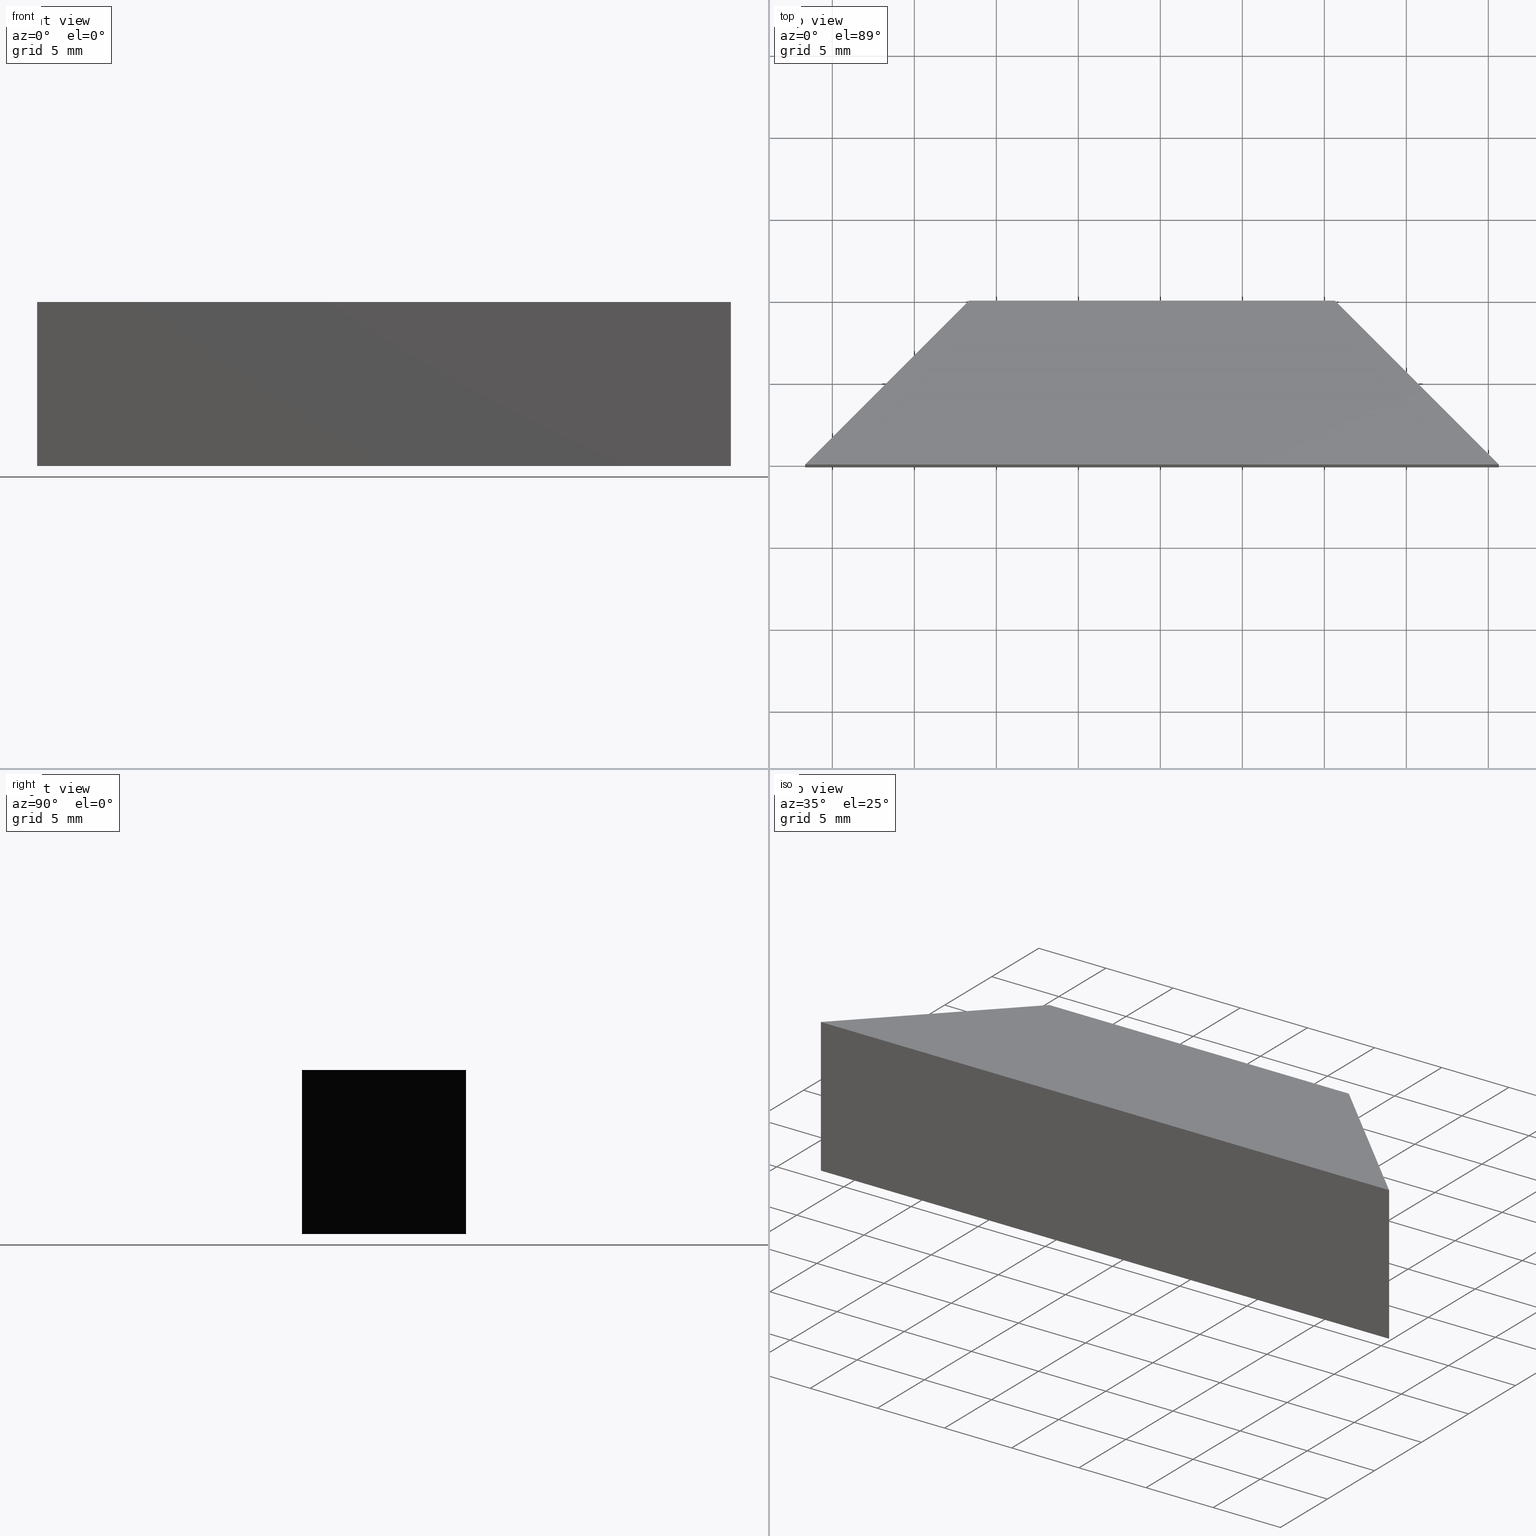
[diagram: canonical four-view strip — front | top / right | iso, engineering-drawing reading convention]
A machine part, canonical four-view strip (front | top / right | iso — engineering-drawing reading convention). The complete STEP part file that produces these views, byte-faithful:
ISO-10303-21;
HEADER;
FILE_DESCRIPTION (( 'STEP AP203' ),
    '1' );
FILE_NAME ('367501.STEP',
    '2019-07-24T06:23:02',
    ( '' ),
    ( '' ),
    'SwSTEP 2.0',
    'SolidWorks 2016',
    '' );
FILE_SCHEMA (( 'CONFIG_CONTROL_DESIGN' ));
ENDSEC;

DATA;
#1 = PRODUCT_DEFINITION_FORMATION_WITH_SPECIFIED_SOURCE ( '�κ�', '', #23, .NOT_KNOWN. ) ;
#2 = CARTESIAN_POINT ( 'NONE',  ( 38.34353380175870300, 49.92210381883444400, 0.0000000000000000000 ) ) ;
#3 = APPROVAL_ROLE ( '' ) ;
#4 = DATE_AND_TIME ( #57, #262 ) ;
#5 = EDGE_LOOP ( 'NONE', ( #205, #259, #79, #50 ) ) ;
#6 = CC_DESIGN_APPROVAL ( #286, ( #258 ) ) ;
#7 = ORIENTED_EDGE ( 'NONE', *, *, #100, .T. ) ;
#8 = ADVANCED_FACE ( 'NONE', ( #40 ), #37, .F. ) ;
#9 = APPROVAL_DATE_TIME ( #181, #180 ) ;
#10 = DATE_AND_TIME ( #69, #110 ) ;
#11 = VERTEX_POINT ( 'NONE', #163 ) ;
#12 = EDGE_CURVE ( 'NONE', #52, #11, #134, .T. ) ;
#13 = LOCAL_TIME ( 14, 23, 2.000000000000000000, #236 ) ;
#14 = DIRECTION ( 'NONE',  ( 1.000000000000000000, 0.0000000000000000000, -0.0000000000000000000 ) ) ;
#15 = LOCAL_TIME ( 14, 23, 2.000000000000000000, #216 ) ;
#16 = CARTESIAN_POINT ( 'NONE',  ( 70.64353380175859300, 59.92210381883445100, 10.00000000000000000 ) ) ;
#17 = VERTEX_POINT ( 'NONE', #260 ) ;
#18 = DIRECTION ( 'NONE',  ( -0.0000000000000000000, -0.0000000000000000000, -1.000000000000000000 ) ) ;
#19 = PLANE ( 'NONE',  #215 ) ;
#20 = LINE ( 'NONE', #58, #272 ) ;
#21 = CC_DESIGN_PERSON_AND_ORGANIZATION_ASSIGNMENT ( #148, #167, ( #258 ) ) ;
#22 = APPROVAL_ROLE ( '' ) ;
#23 = PRODUCT ( '367501', '367501', '', ( #222 ) ) ;
#24 = PERSON_AND_ORGANIZATION_ROLE ( 'design_supplier' ) ;
#25 = PERSON_AND_ORGANIZATION_ROLE ( 'creator' ) ;
#26 = CC_DESIGN_APPROVAL ( #33, ( #1 ) ) ;
#27 = DIRECTION ( 'NONE',  ( -0.7071067811865414700, -0.7071067811865536800, 0.0000000000000000000 ) ) ;
#28 = COORDINATED_UNIVERSAL_TIME_OFFSET ( 8, 0, .AHEAD. ) ;
#29 = PERSON_AND_ORGANIZATION ( #288, #85 ) ;
#30 = FACE_OUTER_BOUND ( 'NONE', #284, .T. ) ;
#31 = CC_DESIGN_DATE_AND_TIME_ASSIGNMENT ( #10, #89, ( #225 ) ) ;
#32 = ADVANCED_FACE ( 'NONE', ( #30 ), #311, .F. ) ;
#33 = APPROVAL ( #190, 'δָ��' ) ;
#34 = CALENDAR_DATE ( 2019, 24, 7 ) ;
#35 = VECTOR ( 'NONE', #289, 1000.000000000000000 ) ;
#36 = ORIENTED_EDGE ( 'NONE', *, *, #59, .F. ) ;
#37 = PLANE ( 'NONE',  #304 ) ;
#38 = CALENDAR_DATE ( 2019, 24, 7 ) ;
#39 = CARTESIAN_POINT ( 'NONE',  ( 38.34353380175870300, 49.92210381883444400, 10.00000000000000000 ) ) ;
#40 = FACE_OUTER_BOUND ( 'NONE', #70, .T. ) ;
#41 =( NAMED_UNIT ( * ) PLANE_ANGLE_UNIT ( ) SI_UNIT ( $, .RADIAN. ) );
#42 = PERSON_AND_ORGANIZATION_ROLE ( 'creator' ) ;
#43 = LOCAL_TIME ( 14, 23, 2.000000000000000000, #207 ) ;
#44 = CARTESIAN_POINT ( 'NONE',  ( 0.0000000000000000000, 0.0000000000000000000, 0.0000000000000000000 ) ) ;
#45 = DATE_AND_TIME ( #177, #169 ) ;
#46 = PRODUCT_DEFINITION_SHAPE ( 'NONE', 'NONE',  #149 ) ;
#47 = CC_DESIGN_SECURITY_CLASSIFICATION ( #225, ( #258 ) ) ;
#48 = CARTESIAN_POINT ( 'NONE',  ( 80.64353380175877800, 49.92210381883444400, 10.00000000000000000 ) ) ;
#49 = APPROVAL_PERSON_ORGANIZATION ( #131, #180, #118 ) ;
#50 = ORIENTED_EDGE ( 'NONE', *, *, #238, .T. ) ;
#51 = PERSON_AND_ORGANIZATION ( #288, #85 ) ;
#52 = VERTEX_POINT ( 'NONE', #16 ) ;
#53 = ADVANCED_FACE ( 'NONE', ( #154 ), #19, .F. ) ;
#54 = ORIENTED_EDGE ( 'NONE', *, *, #84, .T. ) ;
#55 = DATE_AND_TIME ( #127, #13 ) ;
#56 = ORIENTED_EDGE ( 'NONE', *, *, #73, .T. ) ;
#57 = CALENDAR_DATE ( 2019, 24, 7 ) ;
#58 = CARTESIAN_POINT ( 'NONE',  ( 38.34353380175870300, 49.92210381883444400, 10.00000000000000000 ) ) ;
#59 = EDGE_CURVE ( 'NONE', #142, #295, #218, .T. ) ;
#60 = LINE ( 'NONE', #2, #294 ) ;
#61 = ORIENTED_EDGE ( 'NONE', *, *, #299, .T. ) ;
#62 = APPROVAL_STATUS ( 'not_yet_approved' ) ;
#63 = PERSON_AND_ORGANIZATION ( #288, #85 ) ;
#64 = COORDINATED_UNIVERSAL_TIME_OFFSET ( 8, 0, .AHEAD. ) ;
#65 = ORIENTED_EDGE ( 'NONE', *, *, #238, .F. ) ;
#66 = CC_DESIGN_PERSON_AND_ORGANIZATION_ASSIGNMENT ( #136, #24, ( #258 ) ) ;
#67 = CARTESIAN_POINT ( 'NONE',  ( 80.64353380175877800, 49.92210381883444400, 10.00000000000000000 ) ) ;
#68 = DATE_TIME_ROLE ( 'creation_date' ) ;
#69 = CALENDAR_DATE ( 2019, 24, 7 ) ;
#70 = EDGE_LOOP ( 'NONE', ( #137, #65, #310, #76 ) ) ;
#71 = DIRECTION ( 'NONE',  ( 0.0000000000000000000, -0.0000000000000000000, 1.000000000000000000 ) ) ;
#72 = CARTESIAN_POINT ( 'NONE',  ( 38.34353380175870300, 49.92210381883444400, 0.0000000000000000000 ) ) ;
#73 = EDGE_CURVE ( 'NONE', #11, #302, #201, .T. ) ;
#74 = VECTOR ( 'NONE', #18, 1000.000000000000000 ) ;
#75 = APPROVAL_PERSON_ORGANIZATION ( #224, #242, #263 ) ;
#76 = ORIENTED_EDGE ( 'NONE', *, *, #80, .T. ) ;
#77 = CALENDAR_DATE ( 2019, 24, 7 ) ;
#78 = LINE ( 'NONE', #116, #173 ) ;
#79 = ORIENTED_EDGE ( 'NONE', *, *, #267, .F. ) ;
#80 = EDGE_CURVE ( 'NONE', #17, #99, #20, .T. ) ;
#81 = VECTOR ( 'NONE', #250, 1000.000000000000000 ) ;
#82 = DIRECTION ( 'NONE',  ( -0.0000000000000000000, -0.0000000000000000000, -1.000000000000000000 ) ) ;
#83 = CARTESIAN_POINT ( 'NONE',  ( 0.0000000000000000000, 0.0000000000000000000, 0.0000000000000000000 ) ) ;
#84 = EDGE_CURVE ( 'NONE', #52, #295, #208, .T. ) ;
#85 = ORGANIZATION ( 'δָ��', 'δָ��', '' ) ;
#86 = CARTESIAN_POINT ( 'NONE',  ( 70.64353380175859300, 59.92210381883445100, 0.0000000000000000000 ) ) ;
#87 = FACE_OUTER_BOUND ( 'NONE', #196, .T. ) ;
#88 = APPLICATION_CONTEXT ( 'configuration controlled 3d designs of mechanical parts and assemblies' ) ;
#89 = DATE_TIME_ROLE ( 'classification_date' ) ;
#90 = APPLICATION_PROTOCOL_DEFINITION ( 'international standard', 'config_control_design', 1994, #166 ) ;
#91 = DATE_AND_TIME ( #298, #15 ) ;
#92 = APPLICATION_PROTOCOL_DEFINITION ( 'international standard', 'config_control_design', 1994, #88 ) ;
#93 = PRODUCT_DEFINITION_SHAPE ( 'NONE', 'NONE',  #139 ) ;
#94 =( GEOMETRIC_REPRESENTATION_CONTEXT ( 3 ) GLOBAL_UNCERTAINTY_ASSIGNED_CONTEXT ( ( #273 ) ) GLOBAL_UNIT_ASSIGNED_CONTEXT ( ( #243, #41, #285 ) ) REPRESENTATION_CONTEXT ( 'NONE', 'WORKASPACE' ) );
#95 = CARTESIAN_POINT ( 'NONE',  ( 80.64353380175877800, 49.92210381883444400, 0.0000000000000000000 ) ) ;
#96 = DATE_TIME_ROLE ( 'classification_date' ) ;
#97 = APPROVAL_PERSON_ORGANIZATION ( #63, #314, #192 ) ;
#98 = VECTOR ( 'NONE', #144, 1000.000000000000000 ) ;
#99 = VERTEX_POINT ( 'NONE', #217 ) ;
#100 = EDGE_CURVE ( 'NONE', #11, #17, #265, .T. ) ;
#101 = DATE_AND_TIME ( #168, #176 ) ;
#102 = LINE ( 'NONE', #72, #81 ) ;
#103 = ADVANCED_BREP_SHAPE_REPRESENTATION ( '367501', ( #156, #233 ), #94 ) ;
#104 = CC_DESIGN_PERSON_AND_ORGANIZATION_ASSIGNMENT ( #51, #221, ( #1 ) ) ;
#105 = ADVANCED_FACE ( 'NONE', ( #87 ), #157, .F. ) ;
#106 = APPROVAL_DATE_TIME ( #45, #242 ) ;
#107 = ORIENTED_EDGE ( 'NONE', *, *, #267, .T. ) ;
#108 = AXIS2_PLACEMENT_3D ( 'NONE', #147, #71, #195 ) ;
#109 = PERSON_AND_ORGANIZATION ( #288, #85 ) ;
#110 = LOCAL_TIME ( 14, 23, 2.000000000000000000, #113 ) ;
#111 = CC_DESIGN_PERSON_AND_ORGANIZATION_ASSIGNMENT ( #178, #291, ( #225 ) ) ;
#112 = DESIGN_CONTEXT ( 'detailed design', #166, 'design' ) ;
#113 = COORDINATED_UNIVERSAL_TIME_OFFSET ( 8, 0, .AHEAD. ) ;
#114 = CARTESIAN_POINT ( 'NONE',  ( 38.34353380175870300, 49.92210381883444400, 10.00000000000000000 ) ) ;
#115 = ORIENTED_EDGE ( 'NONE', *, *, #100, .F. ) ;
#116 = CARTESIAN_POINT ( 'NONE',  ( 80.64353380175877800, 49.92210381883444400, 10.00000000000000000 ) ) ;
#117 = CARTESIAN_POINT ( 'NONE',  ( 80.64353380175877800, 49.92210381883444400, 0.0000000000000000000 ) ) ;
#118 = APPROVAL_ROLE ( '' ) ;
#119 = PERSON_AND_ORGANIZATION ( #288, #85 ) ;
#120 = APPLICATION_PROTOCOL_DEFINITION ( 'international standard', 'config_control_design', 1994, #248 ) ;
#121 = VECTOR ( 'NONE', #138, 1000.000000000000000 ) ;
#122 = DIRECTION ( 'NONE',  ( -0.7071067811865470200, -0.7071067811865480200, -0.0000000000000000000 ) ) ;
#123 = DATE_TIME_ROLE ( 'creation_date' ) ;
#124 = SHAPE_DEFINITION_REPRESENTATION ( #46, #103 ) ;
#125 = SECURITY_CLASSIFICATION_LEVEL ( 'unclassified' ) ;
#126 = LOCAL_TIME ( 14, 23, 2.000000000000000000, #28 ) ;
#127 = CALENDAR_DATE ( 2019, 24, 7 ) ;
#128 = VECTOR ( 'NONE', #261, 1000.000000000000000 ) ;
#129 = ADVANCED_FACE ( 'NONE', ( #277 ), #198, .T. ) ;
#130 = SECURITY_CLASSIFICATION ( '', '', #125 ) ;
#131 = PERSON_AND_ORGANIZATION ( #288, #85 ) ;
#132 = VERTEX_POINT ( 'NONE', #48 ) ;
#133 = PERSON_AND_ORGANIZATION ( #288, #85 ) ;
#134 = LINE ( 'NONE', #282, #121 ) ;
#135 = DIRECTION ( 'NONE',  ( 0.7071067811865480200, -0.7071067811865470200, 0.0000000000000000000 ) ) ;
#136 = PERSON_AND_ORGANIZATION ( #288, #85 ) ;
#137 = ORIENTED_EDGE ( 'NONE', *, *, #197, .T. ) ;
#138 = DIRECTION ( 'NONE',  ( -1.000000000000000000, -0.0000000000000000000, -0.0000000000000000000 ) ) ;
#139 = PRODUCT_DEFINITION ( 'δ֪', '', #258, #253 ) ;
#140 = DIRECTION ( 'NONE',  ( 0.0000000000000000000, 0.0000000000000000000, 1.000000000000000000 ) ) ;
#141 = DATE_AND_TIME ( #274, #43 ) ;
#142 = VERTEX_POINT ( 'NONE', #95 ) ;
#143 = DIRECTION ( 'NONE',  ( 1.000000000000000000, 0.0000000000000000000, 0.0000000000000000000 ) ) ;
#144 = DIRECTION ( 'NONE',  ( -0.0000000000000000000, -0.0000000000000000000, -1.000000000000000000 ) ) ;
#145 = PERSON_AND_ORGANIZATION_ROLE ( 'design_owner' ) ;
#146 = EDGE_LOOP ( 'NONE', ( #61, #257, #115, #56 ) ) ;
#147 = CARTESIAN_POINT ( 'NONE',  ( 0.0000000000000000000, 0.0000000000000000000, 10.00000000000000000 ) ) ;
#148 = PERSON_AND_ORGANIZATION ( #288, #85 ) ;
#149 = PRODUCT_DEFINITION ( 'δ֪', '', #1, #112 ) ;
#150 = VECTOR ( 'NONE', #161, 1000.000000000000000 ) ;
#151 = VECTOR ( 'NONE', #226, 1000.000000000000000 ) ;
#152 = CC_DESIGN_PERSON_AND_ORGANIZATION_ASSIGNMENT ( #305, #227, ( #130 ) ) ;
#153 = LINE ( 'NONE', #170, #35 ) ;
#154 = FACE_OUTER_BOUND ( 'NONE', #146, .T. ) ;
#155 = CC_DESIGN_APPROVAL ( #242, ( #139 ) ) ;
#156 = MANIFOLD_SOLID_BREP ( '͹̨-����1', #255 ) ;
#157 = PLANE ( 'NONE',  #256 ) ;
#158 = CC_DESIGN_DATE_AND_TIME_ASSIGNMENT ( #4, #68, ( #149 ) ) ;
#159 = CARTESIAN_POINT ( 'NONE',  ( 48.34353380175868900, 59.92210381883445100, 10.00000000000000000 ) ) ;
#160 = CC_DESIGN_PERSON_AND_ORGANIZATION_ASSIGNMENT ( #309, #145, ( #23 ) ) ;
#161 = DIRECTION ( 'NONE',  ( -0.7071067811865536800, 0.7071067811865414700, 0.0000000000000000000 ) ) ;
#162 = ORIENTED_EDGE ( 'NONE', *, *, #281, .F. ) ;
#163 = CARTESIAN_POINT ( 'NONE',  ( 48.34353380175868900, 59.92210381883445100, 10.00000000000000000 ) ) ;
#164 = SECURITY_CLASSIFICATION_LEVEL ( 'unclassified' ) ;
#165 = DIRECTION ( 'NONE',  ( 0.0000000000000000000, -0.0000000000000000000, -1.000000000000000000 ) ) ;
#166 = APPLICATION_CONTEXT ( 'configuration controlled 3d designs of mechanical parts and assemblies' ) ;
#167 = PERSON_AND_ORGANIZATION_ROLE ( 'creator' ) ;
#168 = CALENDAR_DATE ( 2019, 24, 7 ) ;
#169 = LOCAL_TIME ( 14, 23, 2.000000000000000000, #246 ) ;
#170 = CARTESIAN_POINT ( 'NONE',  ( 48.34353380175868900, 59.92210381883445100, 0.0000000000000000000 ) ) ;
#171 = APPROVAL_STATUS ( 'not_yet_approved' ) ;
#172 = PLANE ( 'NONE',  #230 ) ;
#173 = VECTOR ( 'NONE', #191, 1000.000000000000000 ) ;
#174 = ORIENTED_EDGE ( 'NONE', *, *, #12, .T. ) ;
#175 = CC_DESIGN_PERSON_AND_ORGANIZATION_ASSIGNMENT ( #29, #25, ( #139 ) ) ;
#176 = LOCAL_TIME ( 14, 23, 2.000000000000000000, #245 ) ;
#177 = CALENDAR_DATE ( 2019, 24, 7 ) ;
#178 = PERSON_AND_ORGANIZATION ( #288, #85 ) ;
#179 = ORIENTED_EDGE ( 'NONE', *, *, #281, .T. ) ;
#180 = APPROVAL ( #171, 'δָ��' ) ;
#181 = DATE_AND_TIME ( #38, #239 ) ;
#182 = PRODUCT ( '367501', '367501', '', ( #219 ) ) ;
#183 = CARTESIAN_POINT ( 'NONE',  ( 48.34353380175868900, 59.92210381883445100, 10.00000000000000000 ) ) ;
#184 = ORIENTED_EDGE ( 'NONE', *, *, #299, .F. ) ;
#185 = CARTESIAN_POINT ( 'NONE',  ( 38.34353380175870300, 49.92210381883444400, 10.00000000000000000 ) ) ;
#186 = PERSON_AND_ORGANIZATION_ROLE ( 'creator' ) ;
#187 = DIRECTION ( 'NONE',  ( -0.0000000000000000000, -0.0000000000000000000, -1.000000000000000000 ) ) ;
#188 = CC_DESIGN_DATE_AND_TIME_ASSIGNMENT ( #91, #123, ( #139 ) ) ;
#189 = CARTESIAN_POINT ( 'NONE',  ( 48.34353380175868900, 59.92210381883445100, 0.0000000000000000000 ) ) ;
#190 = APPROVAL_STATUS ( 'not_yet_approved' ) ;
#191 = DIRECTION ( 'NONE',  ( -0.7071067811865536800, 0.7071067811865414700, 0.0000000000000000000 ) ) ;
#192 = APPROVAL_ROLE ( '' ) ;
#193 = PERSON_AND_ORGANIZATION ( #288, #85 ) ;
#194 = LINE ( 'NONE', #270, #151 ) ;
#195 = DIRECTION ( 'NONE',  ( 1.000000000000000000, 0.0000000000000000000, -0.0000000000000000000 ) ) ;
#196 = EDGE_LOOP ( 'NONE', ( #179, #229, #240, #54 ) ) ;
#197 = EDGE_CURVE ( 'NONE', #99, #142, #102, .T. ) ;
#198 = PLANE ( 'NONE',  #108 ) ;
#199 = CC_DESIGN_APPROVAL ( #314, ( #130 ) ) ;
#200 = APPROVAL_DATE_TIME ( #206, #314 ) ;
#201 = LINE ( 'NONE', #159, #269 ) ;
#202 = EDGE_CURVE ( 'NONE', #17, #132, #194, .T. ) ;
#203 = APPROVAL_DATE_TIME ( #141, #278 ) ;
#204 = DATE_AND_TIME ( #34, #276 ) ;
#205 = ORIENTED_EDGE ( 'NONE', *, *, #59, .T. ) ;
#206 = DATE_AND_TIME ( #77, #126 ) ;
#207 = COORDINATED_UNIVERSAL_TIME_OFFSET ( 8, 0, .AHEAD. ) ;
#208 = LINE ( 'NONE', #213, #74 ) ;
#209 = DIRECTION ( 'NONE',  ( 0.0000000000000000000, -1.000000000000000000, 0.0000000000000000000 ) ) ;
#210 = LINE ( 'NONE', #67, #98 ) ;
#211 = CC_DESIGN_PERSON_AND_ORGANIZATION_ASSIGNMENT ( #119, #42, ( #1 ) ) ;
#212 = ORIENTED_EDGE ( 'NONE', *, *, #202, .T. ) ;
#213 = CARTESIAN_POINT ( 'NONE',  ( 70.64353380175859300, 59.92210381883445100, 10.00000000000000000 ) ) ;
#214 = DIRECTION ( 'NONE',  ( 0.0000000000000000000, 1.000000000000000000, 0.0000000000000000000 ) ) ;
#215 = AXIS2_PLACEMENT_3D ( 'NONE', #185, #135, #308 ) ;
#216 = COORDINATED_UNIVERSAL_TIME_OFFSET ( 8, 0, .AHEAD. ) ;
#217 = CARTESIAN_POINT ( 'NONE',  ( 38.34353380175870300, 49.92210381883444400, 0.0000000000000000000 ) ) ;
#218 = LINE ( 'NONE', #117, #150 ) ;
#219 = MECHANICAL_CONTEXT ( 'NONE', #248, 'mechanical' ) ;
#220 = CC_DESIGN_SECURITY_CLASSIFICATION ( #130, ( #1 ) ) ;
#221 = PERSON_AND_ORGANIZATION_ROLE ( 'design_supplier' ) ;
#222 = MECHANICAL_CONTEXT ( 'NONE', #287, 'mechanical' ) ;
#223 = DIRECTION ( 'NONE',  ( 0.0000000000000000000, 0.0000000000000000000, 1.000000000000000000 ) ) ;
#224 = PERSON_AND_ORGANIZATION ( #288, #85 ) ;
#225 = SECURITY_CLASSIFICATION ( '', '', #164 ) ;
#226 = DIRECTION ( 'NONE',  ( 1.000000000000000000, 0.0000000000000000000, 0.0000000000000000000 ) ) ;
#227 = PERSON_AND_ORGANIZATION_ROLE ( 'classification_officer' ) ;
#228 = DIRECTION ( 'NONE',  ( 0.7071067811865536800, -0.7071067811865414700, 0.0000000000000000000 ) ) ;
#229 = ORIENTED_EDGE ( 'NONE', *, *, #73, .F. ) ;
#230 = AXIS2_PLACEMENT_3D ( 'NONE', #293, #27, #228 ) ;
#231 = ADVANCED_FACE ( 'NONE', ( #237 ), #172, .F. ) ;
#232 = COORDINATED_UNIVERSAL_TIME_OFFSET ( 8, 0, .AHEAD. ) ;
#233 = AXIS2_PLACEMENT_3D ( 'NONE', #241, #223, #143 ) ;
#234 = ORIENTED_EDGE ( 'NONE', *, *, #197, .F. ) ;
#235 = PRODUCT_RELATED_PRODUCT_CATEGORY ( 'detail', '', ( #23 ) ) ;
#236 = COORDINATED_UNIVERSAL_TIME_OFFSET ( 8, 0, .AHEAD. ) ;
#237 = FACE_OUTER_BOUND ( 'NONE', #5, .T. ) ;
#238 = EDGE_CURVE ( 'NONE', #132, #142, #210, .T. ) ;
#239 = LOCAL_TIME ( 14, 23, 2.000000000000000000, #301 ) ;
#240 = ORIENTED_EDGE ( 'NONE', *, *, #12, .F. ) ;
#241 = CARTESIAN_POINT ( 'NONE',  ( 0.0000000000000000000, 0.0000000000000000000, 0.0000000000000000000 ) ) ;
#242 = APPROVAL ( #290, 'δָ��' ) ;
#243 =( LENGTH_UNIT ( ) NAMED_UNIT ( * ) SI_UNIT ( .MILLI., .METRE. ) );
#244 = APPROVAL_STATUS ( 'not_yet_approved' ) ;
#245 = COORDINATED_UNIVERSAL_TIME_OFFSET ( 8, 0, .AHEAD. ) ;
#246 = COORDINATED_UNIVERSAL_TIME_OFFSET ( 8, 0, .AHEAD. ) ;
#247 = APPROVAL_ROLE ( '' ) ;
#248 = APPLICATION_CONTEXT ( 'configuration controlled 3d designs of mechanical parts and assemblies' ) ;
#249 = APPROVAL_STATUS ( 'not_yet_approved' ) ;
#250 = DIRECTION ( 'NONE',  ( 1.000000000000000000, 0.0000000000000000000, 0.0000000000000000000 ) ) ;
#251 = APPROVAL_PERSON_ORGANIZATION ( #268, #286, #3 ) ;
#252 = AXIS2_PLACEMENT_3D ( 'NONE', #83, #307, #14 ) ;
#253 = DESIGN_CONTEXT ( 'detailed design', #88, 'design' ) ;
#254 = APPROVAL_DATE_TIME ( #55, #33 ) ;
#255 = CLOSED_SHELL ( 'NONE', ( #53, #8, #231, #105, #129, #32 ) ) ;
#256 = AXIS2_PLACEMENT_3D ( 'NONE', #183, #209, #165 ) ;
#257 = ORIENTED_EDGE ( 'NONE', *, *, #80, .F. ) ;
#258 = PRODUCT_DEFINITION_FORMATION_WITH_SPECIFIED_SOURCE ( '�κ�', '', #182, .NOT_KNOWN. ) ;
#259 = ORIENTED_EDGE ( 'NONE', *, *, #84, .F. ) ;
#260 = CARTESIAN_POINT ( 'NONE',  ( 38.34353380175870300, 49.92210381883444400, 10.00000000000000000 ) ) ;
#261 = DIRECTION ( 'NONE',  ( -0.7071067811865470200, -0.7071067811865480200, -0.0000000000000000000 ) ) ;
#262 = LOCAL_TIME ( 14, 23, 2.000000000000000000, #64 ) ;
#263 = APPROVAL_ROLE ( '' ) ;
#264 = CC_DESIGN_PERSON_AND_ORGANIZATION_ASSIGNMENT ( #193, #186, ( #149 ) ) ;
#265 = LINE ( 'NONE', #39, #128 ) ;
#266 = PERSON_AND_ORGANIZATION_ROLE ( 'design_owner' ) ;
#267 = EDGE_CURVE ( 'NONE', #132, #52, #78, .T. ) ;
#268 = PERSON_AND_ORGANIZATION ( #288, #85 ) ;
#269 = VECTOR ( 'NONE', #187, 1000.000000000000000 ) ;
#270 = CARTESIAN_POINT ( 'NONE',  ( 38.34353380175870300, 49.92210381883444400, 10.00000000000000000 ) ) ;
#271 = PERSON_AND_ORGANIZATION ( #288, #85 ) ;
#272 = VECTOR ( 'NONE', #82, 1000.000000000000000 ) ;
#273 = UNCERTAINTY_MEASURE_WITH_UNIT (LENGTH_MEASURE( 1.000000000000000100E-005 ), #243, 'distance_accuracy_value', 'NONE');
#274 = CALENDAR_DATE ( 2019, 24, 7 ) ;
#275 = AXIS2_PLACEMENT_3D ( 'NONE', #44, #140, #313 ) ;
#276 = LOCAL_TIME ( 14, 23, 2.000000000000000000, #232 ) ;
#277 = FACE_OUTER_BOUND ( 'NONE', #306, .T. ) ;
#278 = APPROVAL ( #62, 'δָ��' ) ;
#279 = CC_DESIGN_APPROVAL ( #278, ( #149 ) ) ;
#280 = APPROVAL_DATE_TIME ( #204, #286 ) ;
#281 = EDGE_CURVE ( 'NONE', #295, #302, #153, .T. ) ;
#282 = CARTESIAN_POINT ( 'NONE',  ( 48.34353380175868900, 59.92210381883445100, 10.00000000000000000 ) ) ;
#283 = DIRECTION ( 'NONE',  ( 0.0000000000000000000, -0.0000000000000000000, 1.000000000000000000 ) ) ;
#284 = EDGE_LOOP ( 'NONE', ( #184, #162, #36, #234 ) ) ;
#285 =( NAMED_UNIT ( * ) SI_UNIT ( $, .STERADIAN. ) SOLID_ANGLE_UNIT ( ) );
#286 = APPROVAL ( #244, 'δָ��' ) ;
#287 = APPLICATION_CONTEXT ( 'configuration controlled 3d designs of mechanical parts and assemblies' ) ;
#288 = PERSON ( 'δָ��', 'δָ��', 'δָ��', ('δָ��'), ('δָ��'), ('δָ��') ) ;
#289 = DIRECTION ( 'NONE',  ( -1.000000000000000000, -0.0000000000000000000, -0.0000000000000000000 ) ) ;
#290 = APPROVAL_STATUS ( 'not_yet_approved' ) ;
#291 = PERSON_AND_ORGANIZATION_ROLE ( 'classification_officer' ) ;
#292 = PRODUCT_RELATED_PRODUCT_CATEGORY ( 'detail', '', ( #182 ) ) ;
#293 = CARTESIAN_POINT ( 'NONE',  ( 80.64353380175877800, 49.92210381883444400, 10.00000000000000000 ) ) ;
#294 = VECTOR ( 'NONE', #122, 1000.000000000000000 ) ;
#295 = VERTEX_POINT ( 'NONE', #86 ) ;
#296 = CC_DESIGN_DATE_AND_TIME_ASSIGNMENT ( #101, #96, ( #130 ) ) ;
#297 = APPROVAL_PERSON_ORGANIZATION ( #133, #33, #247 ) ;
#298 = CALENDAR_DATE ( 2019, 24, 7 ) ;
#299 = EDGE_CURVE ( 'NONE', #302, #99, #60, .T. ) ;
#300 = APPROVAL_PERSON_ORGANIZATION ( #109, #278, #22 ) ;
#301 = COORDINATED_UNIVERSAL_TIME_OFFSET ( 8, 0, .AHEAD. ) ;
#302 = VERTEX_POINT ( 'NONE', #189 ) ;
#303 = CC_DESIGN_APPROVAL ( #180, ( #225 ) ) ;
#304 = AXIS2_PLACEMENT_3D ( 'NONE', #114, #214, #283 ) ;
#305 = PERSON_AND_ORGANIZATION ( #288, #85 ) ;
#306 = EDGE_LOOP ( 'NONE', ( #7, #212, #107, #174 ) ) ;
#307 = DIRECTION ( 'NONE',  ( 0.0000000000000000000, -0.0000000000000000000, 1.000000000000000000 ) ) ;
#308 = DIRECTION ( 'NONE',  ( 0.7071067811865470200, 0.7071067811865480200, 0.0000000000000000000 ) ) ;
#309 = PERSON_AND_ORGANIZATION ( #288, #85 ) ;
#310 = ORIENTED_EDGE ( 'NONE', *, *, #202, .F. ) ;
#311 = PLANE ( 'NONE',  #252 ) ;
#312 = CC_DESIGN_PERSON_AND_ORGANIZATION_ASSIGNMENT ( #271, #266, ( #182 ) ) ;
#313 = DIRECTION ( 'NONE',  ( 1.000000000000000000, 0.0000000000000000000, 0.0000000000000000000 ) ) ;
#314 = APPROVAL ( #249, 'δָ��' ) ;
#315 = APPLICATION_PROTOCOL_DEFINITION ( 'international standard', 'config_control_design', 1994, #287 ) ;
ENDSEC;
END-ISO-10303-21;
